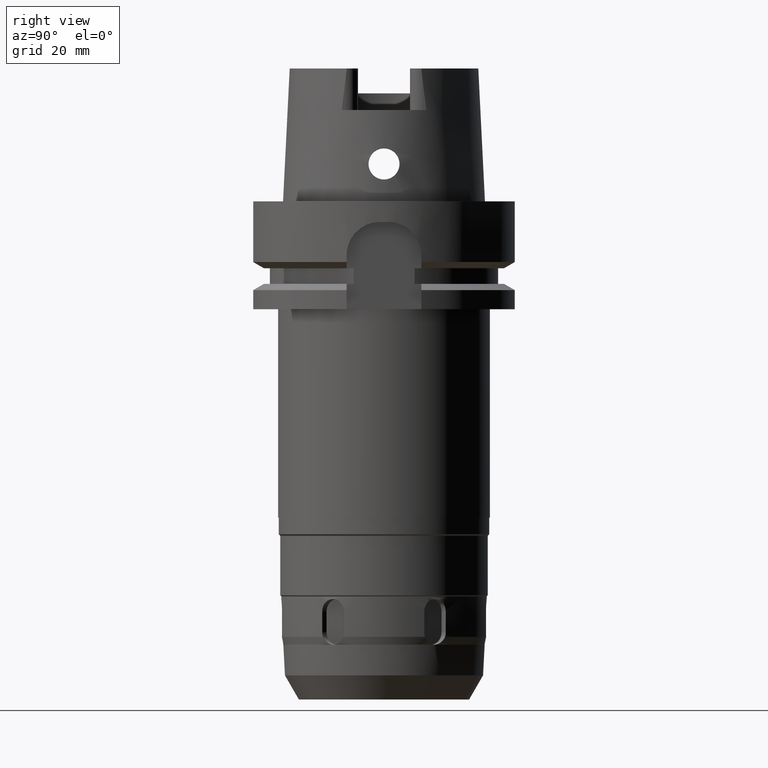
[diagram: clean part render]
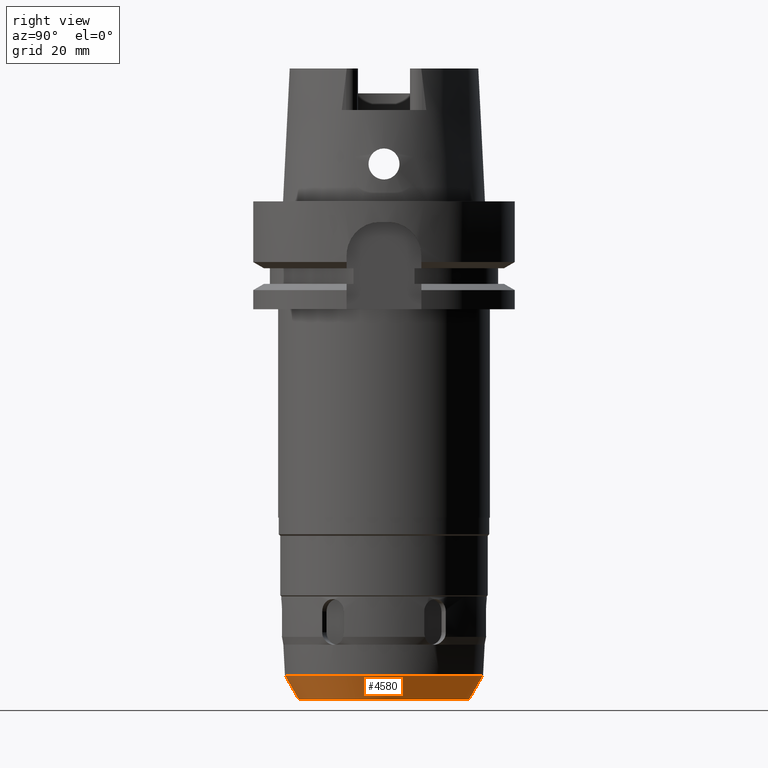
[diagram: same view with one face highlighted and labeled with its STEP entity id]
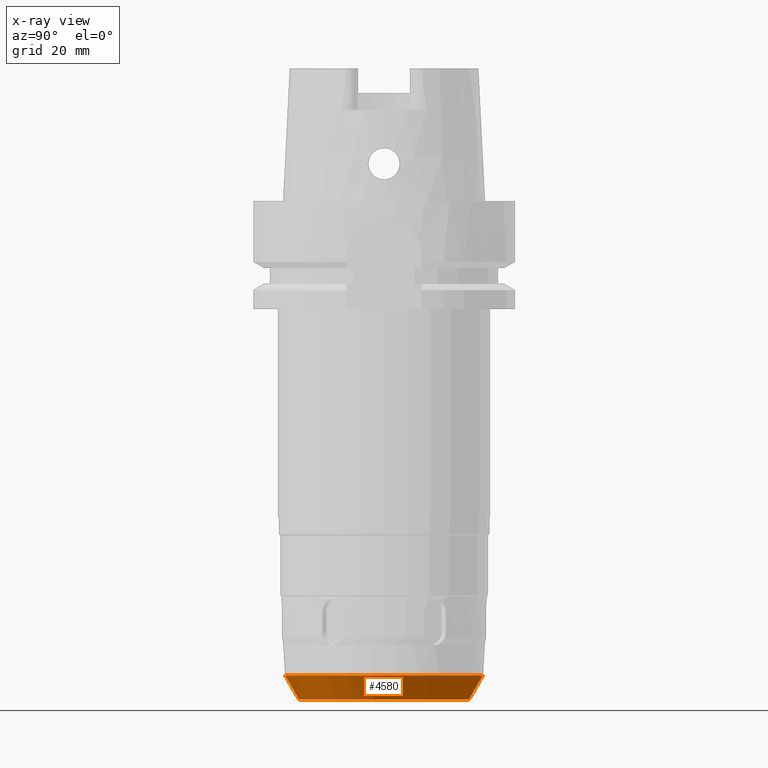
[diagram: x-ray of the same camera — body ghosted, the highlighted face saturated]
A machine part, right view. The second image highlights one B-rep face of the part: STEP entity #4580.
The next image is the same camera in x-ray: the body ghosted, the highlighted face saturated — about 0% of this face is hidden behind the body in this view.
In plain terms, the highlighted conical surface has half-angle 30 deg.
Its self-contained STEP definition (entity closure, byte-faithful):
#924=CARTESIAN_POINT('',(0.E0,0.E0,-1.2E2));
#925=DIRECTION('',(0.E0,0.E0,1.E0));
#926=DIRECTION('',(0.E0,-1.E0,0.E0));
#927=AXIS2_PLACEMENT_3D('',#924,#925,#926);
#956=DIRECTION('',(0.E0,-4.999999999998E-1,-8.660254037846E-1));
#957=VECTOR('',#956,6.722666534442E0);
#958=CARTESIAN_POINT('',(0.E0,2.386133326722E1,-1.14178E2));
#959=LINE('',#958,#957);
#963=CARTESIAN_POINT('',(0.E0,0.E0,-1.14178E2));
#964=DIRECTION('',(0.E0,0.E0,1.E0));
#965=DIRECTION('',(0.E0,-1.E0,0.E0));
#966=AXIS2_PLACEMENT_3D('',#963,#964,#965);
#971=DIRECTION('',(0.E0,4.999999999998E-1,-8.660254037846E-1));
#972=VECTOR('',#971,6.722666534442E0);
#973=CARTESIAN_POINT('',(0.E0,-2.386133326722E1,-1.14178E2));
#974=LINE('',#973,#972);
#3559=CARTESIAN_POINT('',(0.E0,-2.05E1,-1.2E2));
#3560=CARTESIAN_POINT('',(0.E0,2.05E1,-1.2E2));
#3561=VERTEX_POINT('',#3559);
#3562=VERTEX_POINT('',#3560);
#3563=CARTESIAN_POINT('',(0.E0,2.386133326722E1,-1.14178E2));
#3564=VERTEX_POINT('',#3563);
#3565=CARTESIAN_POINT('',(0.E0,-2.386133326722E1,-1.14178E2));
#3566=VERTEX_POINT('',#3565);
#4566=CARTESIAN_POINT('',(0.E0,0.E0,-1.17089E2));
#4567=DIRECTION('',(0.E0,0.E0,1.E0));
#4568=DIRECTION('',(0.E0,1.E0,0.E0));
#4569=AXIS2_PLACEMENT_3D('',#4566,#4567,#4568);
#4570=CONICAL_SURFACE('',#4569,2.218066663361E1,3.E1);
#4572=ORIENTED_EDGE('',*,*,#4571,.T.);
#4573=ORIENTED_EDGE('',*,*,#4555,.F.);
#4575=ORIENTED_EDGE('',*,*,#4574,.F.);
#4577=ORIENTED_EDGE('',*,*,#4576,.T.);
#4578=EDGE_LOOP('',(#4572,#4573,#4575,#4577));
#4579=FACE_OUTER_BOUND('',#4578,.F.);
#928=CIRCLE('',#927,2.05E1);
#967=CIRCLE('',#966,2.386133326722E1);
#4555=EDGE_CURVE('',#3561,#3562,#928,.T.);
#4571=EDGE_CURVE('',#3564,#3562,#959,.T.);
#4574=EDGE_CURVE('',#3566,#3561,#974,.T.);
#4576=EDGE_CURVE('',#3566,#3564,#967,.T.);
#4580=ADVANCED_FACE('',(#4579),#4570,.T.);